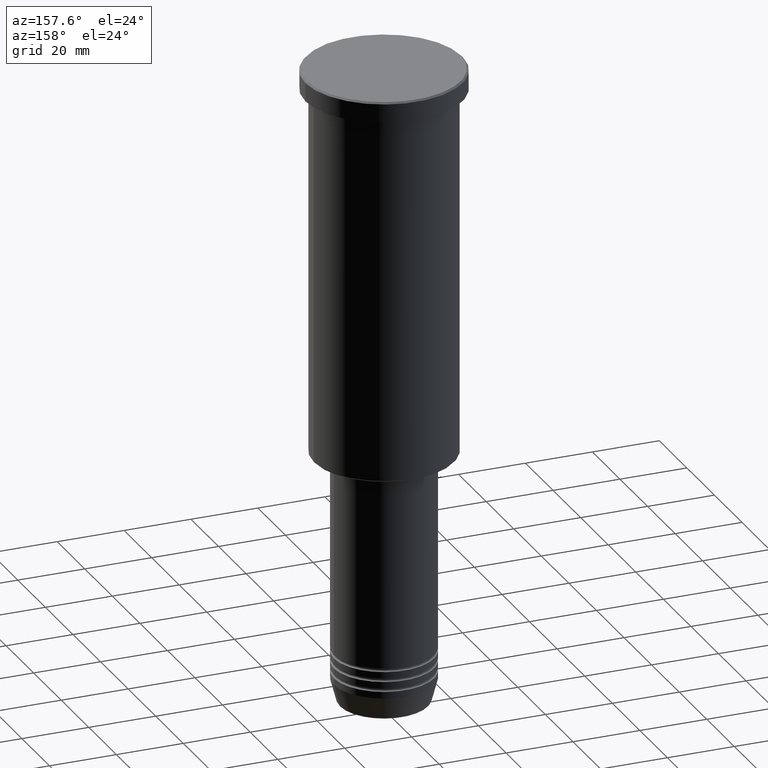
[diagram: clean part render]
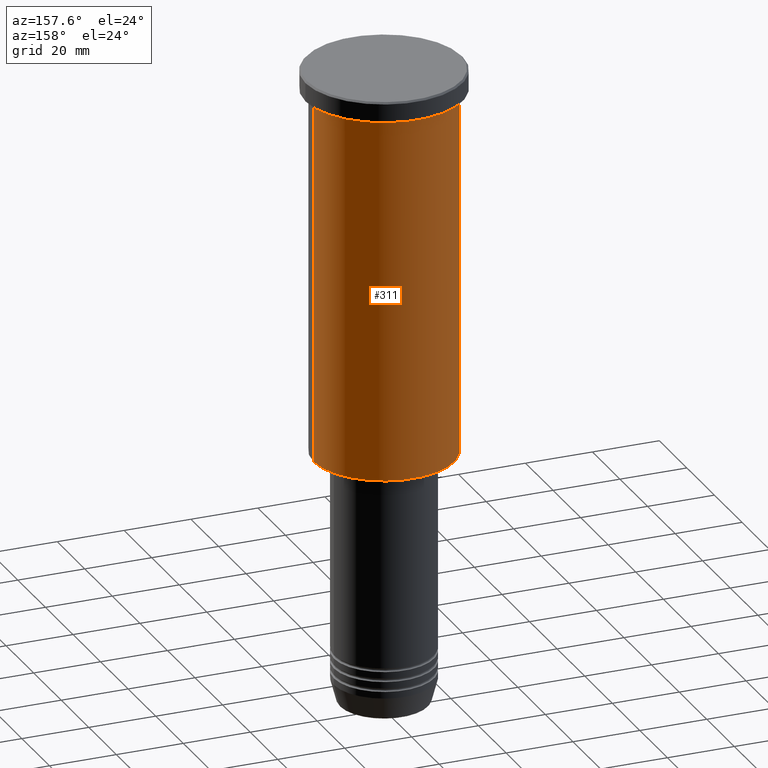
[diagram: same view with one face highlighted and labeled with its STEP entity id]
A machine part, auxiliary view. The second image highlights one B-rep face of the part: STEP entity #311.
In plain terms, the highlighted cylindrical surface (partial cylindrical patch) has radius 21 mm, axis along (-0, -0, 1).
Its self-contained STEP definition (entity closure, byte-faithful):
#7 = AXIS2_PLACEMENT_3D ( 'NONE', #291, #484, #286 ) ;
#12 = CARTESIAN_POINT ( 'NONE',  ( -21.00000000000000000, 2.571758278209441661E-15, 0.000000000000000000 ) ) ;
#24 = VERTEX_POINT ( 'NONE', #274 ) ;
#65 = DIRECTION ( 'NONE',  ( -0.000000000000000000, -0.000000000000000000, 1.000000000000000000 ) ) ;
#122 = CYLINDRICAL_SURFACE ( 'NONE', #7, 21.00000000000000000 ) ;
#146 = CIRCLE ( 'NONE', #281, 21.00000000000000000 ) ;
#249 = EDGE_CURVE ( 'NONE', #840, #966, #938, .T. ) ;
#274 = CARTESIAN_POINT ( 'NONE',  ( 21.00000000000000000, 0.000000000000000000, -6.999999999999994671 ) ) ;
#281 = AXIS2_PLACEMENT_3D ( 'NONE', #846, #1005, #751 ) ;
#286 = DIRECTION ( 'NONE',  ( 1.000000000000000000, 0.000000000000000000, 0.000000000000000000 ) ) ;
#291 = CARTESIAN_POINT ( 'NONE',  ( 0.000000000000000000, 0.000000000000000000, 0.000000000000000000 ) ) ;
#311 = ADVANCED_FACE ( 'NONE', ( #1104 ), #122, .T. ) ;
#376 = VECTOR ( 'NONE', #731, 1000.000000000000000 ) ;
#390 = DIRECTION ( 'NONE',  ( -0.000000000000000000, -0.000000000000000000, 1.000000000000000000 ) ) ;
#423 = CARTESIAN_POINT ( 'NONE',  ( 21.00000000000000000, 0.000000000000000000, -115.4999999999999858 ) ) ;
#434 = DIRECTION ( 'NONE',  ( -1.000000000000000000, 0.000000000000000000, 0.000000000000000000 ) ) ;
#484 = DIRECTION ( 'NONE',  ( -0.000000000000000000, -0.000000000000000000, 1.000000000000000000 ) ) ;
#513 = EDGE_CURVE ( 'NONE', #894, #24, #995, .T. ) ;
#521 = VECTOR ( 'NONE', #390, 1000.000000000000000 ) ;
#526 = ORIENTED_EDGE ( 'NONE', *, *, #1056, .F. ) ;
#667 = CIRCLE ( 'NONE', #764, 21.00000000000000000 ) ;
#731 = DIRECTION ( 'NONE',  ( -0.000000000000000000, -0.000000000000000000, 1.000000000000000000 ) ) ;
#732 = EDGE_LOOP ( 'NONE', ( #1126, #1177, #526, #758 ) ) ;
#736 = CARTESIAN_POINT ( 'NONE',  ( 21.00000000000000000, 0.000000000000000000, 0.000000000000000000 ) ) ;
#751 = DIRECTION ( 'NONE',  ( 1.000000000000000000, 0.000000000000000000, 0.000000000000000000 ) ) ;
#758 = ORIENTED_EDGE ( 'NONE', *, *, #513, .F. ) ;
#764 = AXIS2_PLACEMENT_3D ( 'NONE', #882, #65, #434 ) ;
#840 = VERTEX_POINT ( 'NONE', #1138 ) ;
#846 = CARTESIAN_POINT ( 'NONE',  ( 0.000000000000000000, 0.000000000000000000, -6.999999999999994671 ) ) ;
#882 = CARTESIAN_POINT ( 'NONE',  ( 0.000000000000000000, 0.000000000000000000, -115.4999999999999858 ) ) ;
#894 = VERTEX_POINT ( 'NONE', #423 ) ;
#903 = CARTESIAN_POINT ( 'NONE',  ( -21.00000000000000000, 2.571758278209441661E-15, -6.999999999999994671 ) ) ;
#938 = LINE ( 'NONE', #12, #521 ) ;
#966 = VERTEX_POINT ( 'NONE', #903 ) ;
#995 = LINE ( 'NONE', #736, #376 ) ;
#1005 = DIRECTION ( 'NONE',  ( -0.000000000000000000, -0.000000000000000000, 1.000000000000000000 ) ) ;
#1034 = EDGE_CURVE ( 'NONE', #894, #840, #667, .T. ) ;
#1056 = EDGE_CURVE ( 'NONE', #24, #966, #146, .T. ) ;
#1104 = FACE_OUTER_BOUND ( 'NONE', #732, .T. ) ;
#1126 = ORIENTED_EDGE ( 'NONE', *, *, #1034, .T. ) ;
#1138 = CARTESIAN_POINT ( 'NONE',  ( -21.00000000000000000, 2.571758278209441661E-15, -115.4999999999999858 ) ) ;
#1177 = ORIENTED_EDGE ( 'NONE', *, *, #249, .T. ) ;